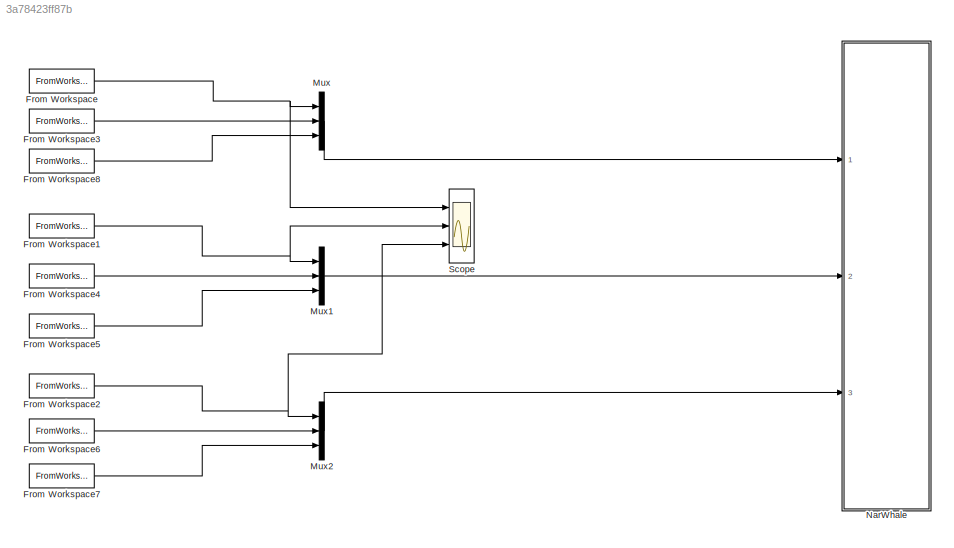
MODEL slx_3a78423ff87b
KIND model
CONFIG AbsTol = auto
CONFIG EnableMultiTasking = off
CONFIG FixedStep = auto
CONFIG MaxStep = auto
CONFIG MinStep = auto
CONFIG RelTol = 1e-3
CONFIG SampleTimeConstraint = Unconstrained
CONFIG SolverName = VariableStepAuto
CONFIG StartTime = 0.0
CONFIG StopTime = 5
BLOCK [FromWorkspace] From Workspace
  VariableName = q1dsim
BLOCK [FromWorkspace] From Workspace1
  VariableName = q2dsim
BLOCK [FromWorkspace] From Workspace2
  VariableName = q3dsim
BLOCK [FromWorkspace] From Workspace3
  VariableName = q1vsim
BLOCK [FromWorkspace] From Workspace4
  VariableName = q2vsim
BLOCK [FromWorkspace] From Workspace5
  VariableName = q2asim
BLOCK [FromWorkspace] From Workspace6
  VariableName = q3vsim
BLOCK [FromWorkspace] From Workspace7
  VariableName = q3asim
BLOCK [FromWorkspace] From Workspace8
  VariableName = q1asim
BLOCK [Mux] Mux
  DisplayOption = bar
  Inputs = 3
  Ports = [3, 1]
BLOCK [Mux] Mux1
  DisplayOption = bar
  Inputs = 3
  Ports = [3, 1]
BLOCK [Mux] Mux2
  DisplayOption = bar
  Inputs = 3
  Ports = [3, 1]
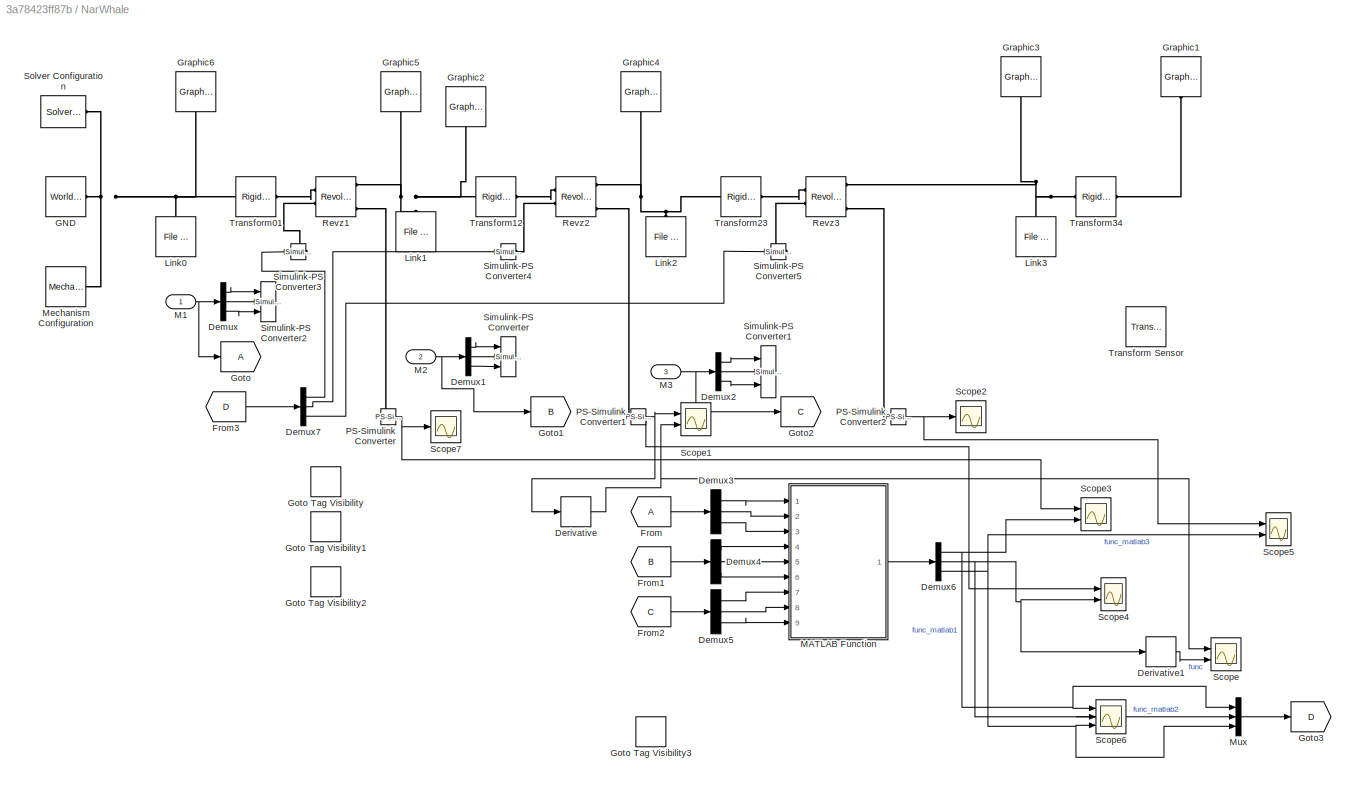
BLOCK [SubSystem] NarWhale
  Ports = [3]
  RequestExecContextInheritance = off
BLOCK [Demux] NarWhale/Demux
  Outputs = 3
  Ports = [1, 3]
BLOCK [Demux] NarWhale/Demux1
  Outputs = 3
  Ports = [1, 3]
BLOCK [Demux] NarWhale/Demux2
  Outputs = 3
  Ports = [1, 3]
BLOCK [Demux] NarWhale/Demux3
  Outputs = 3
  Ports = [1, 3]
BLOCK [Demux] NarWhale/Demux4
  Outputs = 3
  Ports = [1, 3]
BLOCK [Demux] NarWhale/Demux5
  Outputs = 3
  Ports = [1, 3]
BLOCK [Demux] NarWhale/Demux6
  Outputs = 3
  Ports = [1, 3]
BLOCK [Demux] NarWhale/Demux7
  Outputs = 3
  Ports = [1, 3]
BLOCK [Derivative] NarWhale/Derivative
BLOCK [Derivative] NarWhale/Derivative1
BLOCK [From] NarWhale/From
  IconDisplay = Tag and signal name
  TagVisibility = scoped
BLOCK [From] NarWhale/From1
  GotoTag = B
  TagVisibility = scoped
BLOCK [From] NarWhale/From2
  GotoTag = C
  TagVisibility = scoped
BLOCK [From] NarWhale/From3
  GotoTag = D
BLOCK [Reference] NarWhale/GND  REF=sm_lib/Frames and
Transforms/World Frame
  Ports = [0, 0, 0, 0, 0, 0, 1]
  SourceBlock = sm_lib/Frames and\nTransforms/World Frame
  SourceProductBaseCode = MS
  SourceType = World Frame
BLOCK [Goto] NarWhale/Goto
  IconDisplay = Tag and signal name
  TagVisibility = scoped
BLOCK [GotoTagVisibility] NarWhale/Goto Tag Visibility
BLOCK [GotoTagVisibility] NarWhale/Goto Tag Visibility1
  GotoTag = B
BLOCK [GotoTagVisibility] NarWhale/Goto Tag Visibility2
  GotoTag = C
BLOCK [GotoTagVisibility] NarWhale/Goto Tag Visibility3
  GotoTag = D
BLOCK [Goto] NarWhale/Goto1
  GotoTag = B
  TagVisibility = scoped
BLOCK [Goto] NarWhale/Goto2
  GotoTag = C
  TagVisibility = scoped
BLOCK [Goto] NarWhale/Goto3
  GotoTag = D
BLOCK [Reference] NarWhale/Graphic1  REF=sm_lib/Body Elements/Graphic
  NameLocation = left
  Ports = [0, 0, 0, 0, 0, 0, 1]
  SourceBlock = sm_lib/Body Elements/Graphic
  SourceProductBaseCode = MS
  SourceType = Graphic
BLOCK [Reference] NarWhale/Graphic2  REF=sm_lib/Body Elements/Graphic
  NameLocation = left
  Ports = [0, 0, 0, 0, 0, 0, 1]
  SourceBlock = sm_lib/Body Elements/Graphic
  SourceProductBaseCode = MS
  SourceType = Graphic
BLOCK [Reference] NarWhale/Graphic3  REF=sm_lib/Body Elements/Graphic
  NameLocation = left
  Ports = [0, 0, 0, 0, 0, 0, 1]
  SourceBlock = sm_lib/Body Elements/Graphic
  SourceProductBaseCode = MS
  SourceType = Graphic
BLOCK [Reference] NarWhale/Graphic4  REF=sm_lib/Body Elements/Graphic
  NameLocation = left
  Ports = [0, 0, 0, 0, 0, 0, 1]
  SourceBlock = sm_lib/Body Elements/Graphic
  SourceProductBaseCode = MS
  SourceType = Graphic
BLOCK [Reference] NarWhale/Graphic5  REF=sm_lib/Body Elements/Graphic
  NameLocation = left
  Ports = [0, 0, 0, 0, 0, 0, 1]
  SourceBlock = sm_lib/Body Elements/Graphic
  SourceProductBaseCode = MS
  SourceType = Graphic
BLOCK [Reference] NarWhale/Graphic6  REF=sm_lib/Body Elements/Graphic
  NameLocation = left
  Ports = [0, 0, 0, 0, 0, 0, 1]
  SourceBlock = sm_lib/Body Elements/Graphic
  SourceProductBaseCode = MS
  SourceType = Graphic
BLOCK [Reference] NarWhale/Link0  REF=sm_lib/Body Elements/File Solid
  Ports = [0, 0, 0, 0, 0, 0, 1]
  SourceBlock = sm_lib/Body Elements/File Solid
  SourceProductBaseCode = MS
  SourceType = File Solid
BLOCK [Reference] NarWhale/Link1  REF=sm_lib/Body Elements/File Solid
  Ports = [0, 0, 0, 0, 0, 0, 1]
  SourceBlock = sm_lib/Body Elements/File Solid
  SourceProductBaseCode = MS
  SourceType = File Solid
BLOCK [Reference] NarWhale/Link2  REF=sm_lib/Body Elements/File Solid
  Ports = [0, 0, 0, 0, 0, 0, 1]
  SourceBlock = sm_lib/Body Elements/File Solid
  SourceProductBaseCode = MS
  SourceType = File Solid
BLOCK [Reference] NarWhale/Link3  REF=sm_lib/Body Elements/File Solid
  Ports = [0, 0, 0, 0, 0, 0, 1]
  SourceBlock = sm_lib/Body Elements/File Solid
  SourceProductBaseCode = MS
  SourceType = File Solid
BLOCK [Inport] NarWhale/M1
BLOCK [Inport] NarWhale/M2
  Port = 2
BLOCK [Inport] NarWhale/M3
  Port = 3
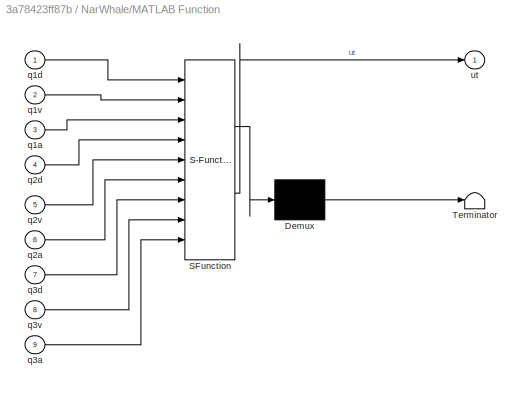
BLOCK [SubSystem] NarWhale/MATLAB Function
  ErrorFcn = Stateflow.Translate.translate
  PermitHierarchicalResolution = ExplicitOnly
  Ports = [9, 1]
  RequestExecContextInheritance = off
  SFBlockType = MATLAB Function
  TreatAsAtomicUnit = on
BLOCK [Demux] NarWhale/MATLAB Function/ Demux 
  Outputs = 1
  Ports = [1, 1]
BLOCK [S-Function] NarWhale/MATLAB Function/ SFunction 
  EnableBusSupport = on
  FunctionName = sf_sfun
  PortCounts = [9 2]
  Ports = [9, 2]
  SFcnIsStateOwnerBlock = off
  SFunctionDeploymentMode = off
  Tag = Stateflow S-Function 2
BLOCK [Terminator] NarWhale/MATLAB Function/ Terminator 
BLOCK [Inport] NarWhale/MATLAB Function/q1a
  Port = 3
BLOCK [Inport] NarWhale/MATLAB Function/q1d
BLOCK [Inport] NarWhale/MATLAB Function/q1v
  Port = 2
BLOCK [Inport] NarWhale/MATLAB Function/q2a
  Port = 6
BLOCK [Inport] NarWhale/MATLAB Function/q2d
  Port = 4
BLOCK [Inport] NarWhale/MATLAB Function/q2v
  Port = 5
BLOCK [Inport] NarWhale/MATLAB Function/q3a
  Port = 9
BLOCK [Inport] NarWhale/MATLAB Function/q3d
  Port = 7
BLOCK [Inport] NarWhale/MATLAB Function/q3v
  Port = 8
BLOCK [Outport] NarWhale/MATLAB Function/ut
BLOCK [Reference] NarWhale/Mechanism Configuration  REF=sm_lib/Utilities/Mechanism
Configuration
  Ports = [0, 0, 0, 0, 0, 0, 1]
  SourceBlock = sm_lib/Utilities/Mechanism\nConfiguration
  SourceProductBaseCode = MS
  SourceType = Mechanism\nConfiguration
BLOCK [Mux] NarWhale/Mux
  DisplayOption = bar
  Inputs = 3
  Ports = [3, 1]
BLOCK [Reference] NarWhale/PS-Simulink Converter  REF=nesl_utility/PS-Simulink
Converter
  Ports = [0, 1, 0, 0, 0, 1]
  SourceBlock = nesl_utility/PS-Simulink\nConverter
  SourceProductBaseCode = PW,SS
  SourceType = PS-Simulink\nConverter
BLOCK [Reference] NarWhale/PS-Simulink Converter1  REF=nesl_utility/PS-Simulink
Converter
  Ports = [0, 1, 0, 0, 0, 1]
  SourceBlock = nesl_utility/PS-Simulink\nConverter
  SourceProductBaseCode = PW,SS
  SourceType = PS-Simulink\nConverter
BLOCK [Reference] NarWhale/PS-Simulink Converter2  REF=nesl_utility/PS-Simulink
Converter
  Ports = [0, 1, 0, 0, 0, 1]
  SourceBlock = nesl_utility/PS-Simulink\nConverter
  SourceProductBaseCode = PW,SS
  SourceType = PS-Simulink\nConverter
BLOCK [Reference] NarWhale/Revz1  REF=sm_lib/Joints/Revolute Joint
  Ports = [0, 0, 0, 0, 0, 2, 4]
  SourceBlock = sm_lib/Joints/Revolute Joint
  SourceProductBaseCode = MS
  SourceType = Revolute Joint
BLOCK [Reference] NarWhale/Revz2  REF=sm_lib/Joints/Revolute Joint
  Ports = [0, 0, 0, 0, 0, 2, 4]
  SourceBlock = sm_lib/Joints/Revolute Joint
  SourceProductBaseCode = MS
  SourceType = Revolute Joint
BLOCK [Reference] NarWhale/Revz3  REF=sm_lib/Joints/Revolute Joint
  Ports = [0, 0, 0, 0, 0, 2, 4]
  SourceBlock = sm_lib/Joints/Revolute Joint
  SourceProductBaseCode = MS
  SourceType = Revolute Joint
BLOCK [Scope] NarWhale/Scope
  Floating = off
  NumInputPorts = 2
  Ports = [2]
  ScopeSpecificationString = Simulink.scopes.TimeScopeBlockCfg('CurrentConfiguration', extmgr.ConfigurationSet(extmgr.Configuration('Core','General UI',true),extmgr.Configuration('Core','Source UI',true),extmgr.Configuration('Sources','WiredSimulink',true,'DataLoggingVariableName','ScopeData2'),extmgr.Configuration('Visuals','Time Domain',true,'SerializedDisplays',{struct('MinYLimReal','-0.15662','MaxYLimReal','0.09201','YLab...<+1448ch>
BLOCK [Scope] NarWhale/Scope1
  Floating = off
  NumInputPorts = 2
  Ports = [2]
  ScopeSpecificationString = Simulink.scopes.TimeScopeBlockCfg('CurrentConfiguration', extmgr.ConfigurationSet(extmgr.Configuration('Core','General UI',true),extmgr.Configuration('Core','Source UI',true),extmgr.Configuration('Sources','WiredSimulink',true,'DataLoggingVariableName','ScopeData1'),extmgr.Configuration('Visuals','Time Domain',true,'SerializedDisplays',{struct('MinYLimReal','-0.15662','MaxYLimReal','0.09201','YLab...<+1756ch>
BLOCK [Scope] NarWhale/Scope2
  Floating = off
  NumInputPorts = 1
  Ports = [1]
  ScopeSpecificationString = Simulink.scopes.TimeScopeBlockCfg('CurrentConfiguration', extmgr.ConfigurationSet(extmgr.Configuration('Core','General UI',true),extmgr.Configuration('Core','Source UI',true),extmgr.Configuration('Sources','WiredSimulink',true,'DataLoggingVariableName','ScopeData2'),extmgr.Configuration('Visuals','Time Domain',true,'SerializedDisplays',{struct('MinYLimReal','-0.01879','MaxYLimReal','0.0252','YLabe...<+1410ch>
BLOCK [Scope] NarWhale/Scope3
  Floating = off
  NumInputPorts = 2
  Ports = [2]
  ScopeSpecificationString = Simulink.scopes.TimeScopeBlockCfg('CurrentConfiguration', extmgr.ConfigurationSet(extmgr.Configuration('Core','General UI',true),extmgr.Configuration('Core','Source UI',true),extmgr.Configuration('Sources','WiredSimulink',true,'DataLoggingVariableName','ScopeData1'),extmgr.Configuration('Visuals','Time Domain',true,'SerializedDisplays',{struct('MinYLimReal','-0.00034','MaxYLimReal','0.00026','YLab...<+1472ch>
BLOCK [Scope] NarWhale/Scope4
  Floating = off
  NumInputPorts = 2
  Ports = [2]
  ScopeSpecificationString = Simulink.scopes.TimeScopeBlockCfg('CurrentConfiguration', extmgr.ConfigurationSet(extmgr.Configuration('Core','General UI',true),extmgr.Configuration('Core','Source UI',true),extmgr.Configuration('Sources','WiredSimulink',true,'DataLoggingVariableName','ScopeData1'),extmgr.Configuration('Visuals','Time Domain',true,'SerializedDisplays',{struct('MinYLimReal','-3.19485','MaxYLimReal','3.81756','YLab...<+1476ch>
BLOCK [Scope] NarWhale/Scope5
  Floating = off
  NumInputPorts = 2
  Ports = [2]
  ScopeSpecificationString = Simulink.scopes.TimeScopeBlockCfg('CurrentConfiguration', extmgr.ConfigurationSet(extmgr.Configuration('Core','General UI',true),extmgr.Configuration('Core','Source UI',true),extmgr.Configuration('Sources','WiredSimulink',true,'DataLoggingVariableName','ScopeData2'),extmgr.Configuration('Visuals','Time Domain',true,'SerializedDisplays',{struct('MinYLimReal','-2.64686','MaxYLimReal','-1.07445','YLa...<+1477ch>
BLOCK [Scope] NarWhale/Scope6
  Floating = off
  NumInputPorts = 3
  Ports = [3]
  ScopeSpecificationString = Simulink.scopes.TimeScopeBlockCfg('CurrentConfiguration', extmgr.ConfigurationSet(extmgr.Configuration('Core','General UI',true),extmgr.Configuration('Core','Source UI',true),extmgr.Configuration('Sources','WiredSimulink',true,'DataLoggingVariableName','ScopeData3'),extmgr.Configuration('Visuals','Time Domain',true,'SerializedDisplays',{struct('MinYLimReal','-0.06892','MaxYLimReal','0.07951','YLab...<+1763ch>
BLOCK [Scope] NarWhale/Scope7
  Floating = off
  NumInputPorts = 1
  Ports = [1]
  ScopeSpecificationString = Simulink.scopes.TimeScopeBlockCfg('CurrentConfiguration', extmgr.ConfigurationSet(extmgr.Configuration('Core','General UI',true),extmgr.Configuration('Core','Source UI',true),extmgr.Configuration('Sources','WiredSimulink',true,'DataLoggingVariableName','ScopeData1'),extmgr.Configuration('Visuals','Time Domain',true,'SerializedDisplays',{struct('MinYLimReal','-0.00034','MaxYLimReal','0.00026','YLab...<+1716ch>
BLOCK [Reference] NarWhale/Simulink-PS Converter  REF=nesl_utility/Simulink-PS
Converter
  Ports = [3, 0, 0, 0, 0, 0, 1]
  SourceBlock = nesl_utility/Simulink-PS\nConverter
  SourceProductBaseCode = PW,SS
  SourceType = Simulink-PS\nConverter
BLOCK [Reference] NarWhale/Simulink-PS Converter1  REF=nesl_utility/Simulink-PS
Converter
  Ports = [3, 0, 0, 0, 0, 0, 1]
  SourceBlock = nesl_utility/Simulink-PS\nConverter
  SourceProductBaseCode = PW,SS
  SourceType = Simulink-PS\nConverter
BLOCK [Reference] NarWhale/Simulink-PS Converter2  REF=nesl_utility/Simulink-PS
Converter
  Ports = [3, 0, 0, 0, 0, 0, 1]
  SourceBlock = nesl_utility/Simulink-PS\nConverter
  SourceProductBaseCode = PW,SS
  SourceType = Simulink-PS\nConverter
BLOCK [Reference] NarWhale/Simulink-PS Converter3  REF=nesl_utility/Simulink-PS
Converter
  Ports = [1, 0, 0, 0, 0, 0, 1]
  SourceBlock = nesl_utility/Simulink-PS\nConverter
  SourceProductBaseCode = PW,SS
  SourceType = Simulink-PS\nConverter
BLOCK [Reference] NarWhale/Simulink-PS Converter4  REF=nesl_utility/Simulink-PS
Converter
  Ports = [1, 0, 0, 0, 0, 0, 1]
  SourceBlock = nesl_utility/Simulink-PS\nConverter
  SourceProductBaseCode = PW,SS
  SourceType = Simulink-PS\nConverter
BLOCK [Reference] NarWhale/Simulink-PS Converter5  REF=nesl_utility/Simulink-PS
Converter
  Ports = [1, 0, 0, 0, 0, 0, 1]
  SourceBlock = nesl_utility/Simulink-PS\nConverter
  SourceProductBaseCode = PW,SS
  SourceType = Simulink-PS\nConverter
BLOCK [Reference] NarWhale/Solver Configuration  REF=nesl_utility/Solver
Configuration
  Ports = [0, 0, 0, 0, 0, 0, 1]
  SourceBlock = nesl_utility/Solver\nConfiguration
  SourceProductBaseCode = PW,SS
  SourceType = Solver\nConfiguration
BLOCK [Reference] NarWhale/Transform Sensor  REF=sm_lib/Frames and
Transforms/Transform
Sensor
  Commented = on
  Ports = [0, 0, 0, 0, 0, 1, 1]
  SourceBlock = sm_lib/Frames and\nTransforms/Transform\nSensor
  SourceProductBaseCode = MS
  SourceType = Transform\nSensor
BLOCK [Reference] NarWhale/Transform01  REF=sm_lib/Frames and
Transforms/Rigid
Transform
  Ports = [0, 0, 0, 0, 0, 1, 1]
  SourceBlock = sm_lib/Frames and\nTransforms/Rigid\nTransform
  SourceProductBaseCode = MS
  SourceType = Rigid\nTransform
BLOCK [Reference] NarWhale/Transform12  REF=sm_lib/Frames and
Transforms/Rigid
Transform
  Ports = [0, 0, 0, 0, 0, 1, 1]
  SourceBlock = sm_lib/Frames and\nTransforms/Rigid\nTransform
  SourceProductBaseCode = MS
  SourceType = Rigid\nTransform
BLOCK [Reference] NarWhale/Transform23  REF=sm_lib/Frames and
Transforms/Rigid
Transform
  Ports = [0, 0, 0, 0, 0, 1, 1]
  SourceBlock = sm_lib/Frames and\nTransforms/Rigid\nTransform
  SourceProductBaseCode = MS
  SourceType = Rigid\nTransform
BLOCK [Reference] NarWhale/Transform34  REF=sm_lib/Frames and
Transforms/Rigid
Transform
  Ports = [0, 0, 0, 0, 0, 1, 1]
  SourceBlock = sm_lib/Frames and\nTransforms/Rigid\nTransform
  SourceProductBaseCode = MS
  SourceType = Rigid\nTransform
BLOCK [Scope] Scope
  Floating = off
  NumInputPorts = 3
  Ports = [3]
  ScopeSpecificationString = Simulink.scopes.TimeScopeBlockCfg('CurrentConfiguration', extmgr.ConfigurationSet(extmgr.Configuration('Core','General UI',true),extmgr.Configuration('Core','Source UI',true),extmgr.Configuration('Sources','WiredSimulink',true,'DataLoggingVariableName','ScopeData1'),extmgr.Configuration('Visuals','Time Domain',true,'SerializedDisplays',{struct('MinYLimReal','-0.58904','MaxYLimReal','0.06545','YLab...<+1504ch>
NET From Workspace1:1 -> Mux1:1, Scope:2
NET From Workspace2:1 -> Mux2:1, Scope:3
LINE From Workspace3:1 -> Mux:2
LINE From Workspace4:1 -> Mux1:2
LINE From Workspace5:1 -> Mux1:3
LINE From Workspace6:1 -> Mux2:2
LINE From Workspace7:1 -> Mux2:3
LINE From Workspace8:1 -> Mux:3
NET From Workspace:1 -> Mux:1, Scope:1
LINE Mux1:1 -> NarWhale:2
LINE Mux2:1 -> NarWhale:3
LINE Mux:1 -> NarWhale:1
LINE NarWhale/Demux1:1 -> NarWhale/Simulink-PS Converter:1
LINE NarWhale/Demux1:2 -> NarWhale/Simulink-PS Converter:2
LINE NarWhale/Demux1:3 -> NarWhale/Simulink-PS Converter:3
LINE NarWhale/Demux2:1 -> NarWhale/Simulink-PS Converter1:1
LINE NarWhale/Demux2:2 -> NarWhale/Simulink-PS Converter1:2
LINE NarWhale/Demux2:3 -> NarWhale/Simulink-PS Converter1:3
LINE NarWhale/Demux3:1 -> NarWhale/MATLAB Function:1
LINE NarWhale/Demux3:2 -> NarWhale/MATLAB Function:2
LINE NarWhale/Demux3:3 -> NarWhale/MATLAB Function:3
LINE NarWhale/Demux4:1 -> NarWhale/MATLAB Function:4
LINE NarWhale/Demux4:2 -> NarWhale/MATLAB Function:5
LINE NarWhale/Demux4:3 -> NarWhale/MATLAB Function:6
LINE NarWhale/Demux5:1 -> NarWhale/MATLAB Function:7
LINE NarWhale/Demux5:2 -> NarWhale/MATLAB Function:8
LINE NarWhale/Demux5:3 -> NarWhale/MATLAB Function:9
NET NarWhale/Demux6:1 -> NarWhale/Mux:1, NarWhale/Scope3:2, NarWhale/Scope6:1
NET NarWhale/Demux6:2 -> NarWhale/Derivative1:1, NarWhale/Mux:2, NarWhale/Scope4:2, NarWhale/Scope6:2
NET NarWhale/Demux6:3 -> NarWhale/Mux:3, NarWhale/Scope5:2, NarWhale/Scope6:3
LINE NarWhale/Demux7:1 -> NarWhale/Simulink-PS Converter3:1
LINE NarWhale/Demux7:2 -> NarWhale/Simulink-PS Converter4:1
LINE NarWhale/Demux7:3 -> NarWhale/Simulink-PS Converter5:1
LINE NarWhale/Demux:1 -> NarWhale/Simulink-PS Converter2:1
LINE NarWhale/Demux:2 -> NarWhale/Simulink-PS Converter2:2
LINE NarWhale/Demux:3 -> NarWhale/Simulink-PS Converter2:3
LINE NarWhale/Derivative1:1 -> NarWhale/Scope:2
NET NarWhale/Derivative:1 -> NarWhale/Scope1:2, NarWhale/Scope:1
LINE NarWhale/From1:1 -> NarWhale/Demux4:1
LINE NarWhale/From2:1 -> NarWhale/Demux5:1
LINE NarWhale/From3:1 -> NarWhale/Demux7:1
LINE NarWhale/From:1 -> NarWhale/Demux3:1
NET NarWhale/M1:1 -> NarWhale/Demux:1, NarWhale/Goto:1
NET NarWhale/M2:1 -> NarWhale/Demux1:1, NarWhale/Goto1:1
NET NarWhale/M3:1 -> NarWhale/Demux2:1, NarWhale/Goto2:1
LINE NarWhale/MATLAB Function:1 -> NarWhale/Demux6:1
LINE NarWhale/Mux:1 -> NarWhale/Goto3:1
NET NarWhale/PS-Simulink Converter1:1 -> NarWhale/Derivative:1, NarWhale/Scope1:1, NarWhale/Scope4:1
NET NarWhale/PS-Simulink Converter2:1 -> NarWhale/Scope2:1, NarWhale/Scope5:1
NET NarWhale/PS-Simulink Converter:1 -> NarWhale/Scope3:1, NarWhale/Scope7:1
PNET net1: NarWhale/GND:RConn1 -- NarWhale/Graphic6:RConn1 -- NarWhale/Link0:RConn1 -- NarWhale/Mechanism Configuration:RConn1 -- NarWhale/Solver Configuration:RConn1 -- NarWhale/Transform01:LConn1
PLINE NarWhale/Graphic1:RConn1 -- NarWhale/Transform34:RConn1
PNET net2: NarWhale/Graphic2:RConn1 -- NarWhale/Graphic5:RConn1 -- NarWhale/Link1:RConn1 -- NarWhale/Revz1:RConn1 -- NarWhale/Transform12:LConn1
PNET net3: NarWhale/Graphic3:RConn1 -- NarWhale/Link3:RConn1 -- NarWhale/Revz3:RConn1 -- NarWhale/Transform34:LConn1
PNET net4: NarWhale/Graphic4:RConn1 -- NarWhale/Link2:RConn1 -- NarWhale/Revz2:RConn1 -- NarWhale/Transform23:LConn1
PLINE NarWhale/PS-Simulink Converter1:LConn1 -- NarWhale/Revz2:RConn4
PLINE NarWhale/PS-Simulink Converter2:LConn1 -- NarWhale/Revz3:RConn4
PLINE NarWhale/PS-Simulink Converter:LConn1 -- NarWhale/Revz1:RConn4
PLINE NarWhale/Revz1:LConn1 -- NarWhale/Transform01:RConn1
PLINE NarWhale/Revz1:LConn2 -- NarWhale/Simulink-PS Converter3:RConn1
PLINE NarWhale/Revz2:LConn1 -- NarWhale/Transform12:RConn1
PLINE NarWhale/Revz2:LConn2 -- NarWhale/Simulink-PS Converter4:RConn1
PLINE NarWhale/Revz3:LConn1 -- NarWhale/Transform23:RConn1
PLINE NarWhale/Revz3:LConn2 -- NarWhale/Simulink-PS Converter5:RConn1
note: NET lines group one-source signal fan-out (src -> all destinations, sorted); 1:1 wires keep LINE; PNET lines group multi-terminal physical nets as a canonical sorted terminal list (undirected conserving connections); 2-terminal nets keep the pairwise PLINE form
CHART NarWhale/MATLAB Function states=1 transitions=1
  STATE_LABEL 'eML_blk_kernel()'
  STATE_LABEL 'SCRIPT:\nfunction ut = fcn(q1d,q1v,q1a,q2d,q2v,q2a,q3d,q3v,q3a)\n\nm1 = 3.0358\nm2 = 2.0778\nm3 = 1.4388\nI1 = [0.00971694169       -0.00064648471      -0.01364762489;\n      -0.00064648471        0.01128154665     -0.00136042243;\n      -0.01364762489    -0.00136042243       0.01196416148];\nI2 = [0.00247391072       -0.00003538205         -0.00217523776;\n      -0.00003538205         0.03115417518       0...<+3608ch>'
CHART  states=0 transitions=0
